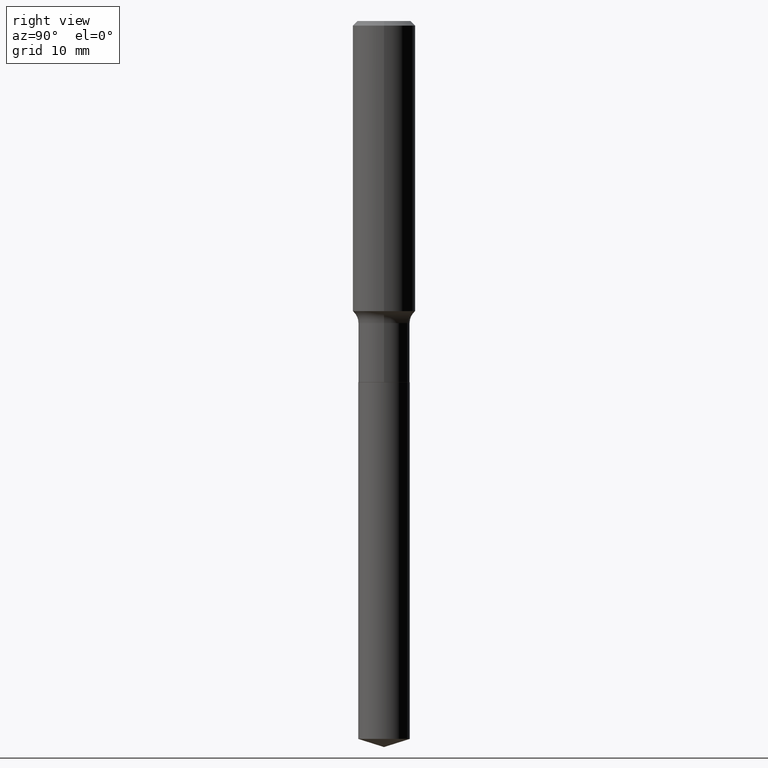
[diagram: clean part render]
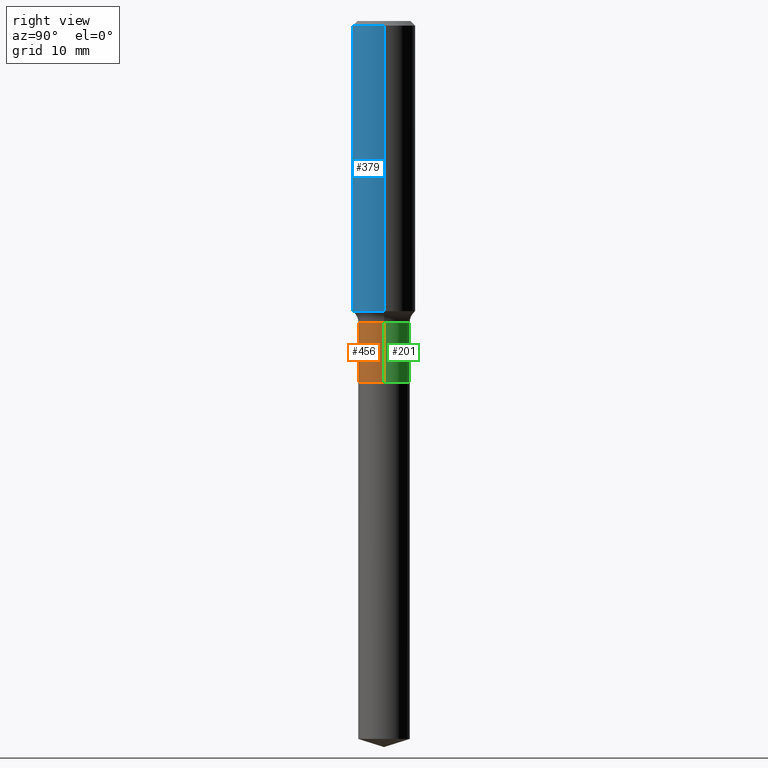
[diagram: same view with three faces highlighted in distinct colors, each labeled with its STEP entity id]
A machine part, right view with three faces highlighted in distinct colors.
Their STEP definitions:

[orange] entity #456 — the highlighted cylindrical surface (edge-blend (fillet) strip) has radius 3.2639 mm, axis along (-0, 0, 1).
#13 = ORIENTED_EDGE ( 'NONE', *, *, #368, .T. ) ;
#30 = LINE ( 'NONE', #339, #383 ) ;
#44 = FACE_OUTER_BOUND ( 'NONE', #319, .T. ) ;
#66 = CARTESIAN_POINT ( 'NONE',  ( -0.1285000000000000309, -4.868321959471694166E-15, -1.803400000000000114 ) ) ;
#76 = DIRECTION ( 'NONE',  ( 1.000000000000000000, -6.982962677686267499E-15, 0.000000000000000000 ) ) ;
#85 = VERTEX_POINT ( 'NONE', #447 ) ;
#106 = CIRCLE ( 'NONE', #154, 0.1284999999999999754 ) ;
#115 = CARTESIAN_POINT ( 'NONE',  ( 4.410158445074275915E-29, -6.296537446469729141E-15, -1.803400000000000114 ) ) ;
#119 = ORIENTED_EDGE ( 'NONE', *, *, #178, .F. ) ;
#123 = CARTESIAN_POINT ( 'NONE',  ( 0.000000000000000000, 0.000000000000000000, 0.000000000000000000 ) ) ;
#127 = CIRCLE ( 'NONE', #408, 0.1285000000000000309 ) ;
#154 = AXIS2_PLACEMENT_3D ( 'NONE', #218, #295, #222 ) ;
#178 = EDGE_CURVE ( 'NONE', #473, #85, #106, .T. ) ;
#195 = VERTEX_POINT ( 'NONE', #372 ) ;
#209 = EDGE_CURVE ( 'NONE', #216, #473, #30, .T. ) ;
#215 = EDGE_CURVE ( 'NONE', #195, #85, #261, .T. ) ;
#216 = VERTEX_POINT ( 'NONE', #66 ) ;
#218 = CARTESIAN_POINT ( 'NONE',  ( 3.688500600369042709E-29, -5.266201303377117503E-15, -1.508300000000000418 ) ) ;
#222 = DIRECTION ( 'NONE',  ( 1.000000000000000000, -6.982962677686270655E-15, 0.000000000000000000 ) ) ;
#238 = DIRECTION ( 'NONE',  ( 1.000000000000000000, -6.982962677686265922E-15, 4.876176775795936353E-29 ) ) ;
#257 = CARTESIAN_POINT ( 'NONE',  ( 0.1285000000000000031, -8.973107040826851776E-16, 6.265887156897778363E-30 ) ) ;
#261 = LINE ( 'NONE', #257, #299 ) ;
#278 = DIRECTION ( 'NONE',  ( -2.445468806185136597E-29, 3.491481338843145583E-15, 1.000000000000000000 ) ) ;
#295 = DIRECTION ( 'NONE',  ( -2.445468806185136597E-29, 3.491481338843145583E-15, 1.000000000000000000 ) ) ;
#299 = VECTOR ( 'NONE', #414, 39.37007874015748143 ) ;
#301 = ORIENTED_EDGE ( 'NONE', *, *, #209, .F. ) ;
#309 = AXIS2_PLACEMENT_3D ( 'NONE', #123, #278, #238 ) ;
#319 = EDGE_LOOP ( 'NONE', ( #301, #13, #449, #119 ) ) ;
#339 = CARTESIAN_POINT ( 'NONE',  ( -0.1285000000000000031, 9.130474154517287609E-16, -6.320831590977554358E-30 ) ) ;
#351 = DIRECTION ( 'NONE',  ( -2.445468806185136597E-29, 3.491481338843145583E-15, 1.000000000000000000 ) ) ;
#368 = EDGE_CURVE ( 'NONE', #216, #195, #127, .T. ) ;
#372 = CARTESIAN_POINT ( 'NONE',  ( 0.1285000000000000309, -7.193848150552414318E-15, -1.803400000000000114 ) ) ;
#383 = VECTOR ( 'NONE', #492, 39.37007874015748143 ) ;
#408 = AXIS2_PLACEMENT_3D ( 'NONE', #115, #351, #76 ) ;
#414 = DIRECTION ( 'NONE',  ( -2.445468806185136877E-29, 3.491481338843145188E-15, 1.000000000000000000 ) ) ;
#436 = CARTESIAN_POINT ( 'NONE',  ( -0.1284999999999999754, -4.868321959471694166E-15, -1.508300000000000418 ) ) ;
#447 = CARTESIAN_POINT ( 'NONE',  ( 0.1284999999999999754, -6.163512007459803469E-15, -1.508300000000000418 ) ) ;
#449 = ORIENTED_EDGE ( 'NONE', *, *, #215, .T. ) ;
#456 = ADVANCED_FACE ( 'NONE', ( #44 ), #472, .T. ) ;
#472 = CYLINDRICAL_SURFACE ( 'NONE', #309, 0.1285000000000000031 ) ;
#473 = VERTEX_POINT ( 'NONE', #436 ) ;
#492 = DIRECTION ( 'NONE',  ( -2.445468806185136877E-29, 3.491481338843145188E-15, 1.000000000000000000 ) ) ;

[blue] entity #379 — the highlighted cylindrical surface (edge-blend (fillet) strip) has radius 3.9688 mm, axis along (-0, 0, 1).
#9 = CARTESIAN_POINT ( 'NONE',  ( -0.1562500000000000000, -1.459648067697439575E-15, -0.02343750000000014225 ) ) ;
#20 = AXIS2_PLACEMENT_3D ( 'NONE', #356, #432, #389 ) ;
#21 = CARTESIAN_POINT ( 'NONE',  ( 3.542611680774473923E-29, -5.057910590766056588E-15, -1.448643168873967380 ) ) ;
#41 = DIRECTION ( 'NONE',  ( 1.000000000000000000, -6.982962677686266711E-15, 4.876176775795935232E-29 ) ) ;
#72 = VERTEX_POINT ( 'NONE', #365 ) ;
#74 = EDGE_CURVE ( 'NONE', #438, #72, #308, .T. ) ;
#84 = CARTESIAN_POINT ( 'NONE',  ( 0.1562500000000000833, -1.091087918388479765E-15, 7.619026212181153180E-30 ) ) ;
#87 = ORIENTED_EDGE ( 'NONE', *, *, #404, .F. ) ;
#95 = AXIS2_PLACEMENT_3D ( 'NONE', #21, #325, #244 ) ;
#103 = LINE ( 'NONE', #451, #212 ) ;
#122 = VERTEX_POINT ( 'NONE', #168 ) ;
#149 = CYLINDRICAL_SURFACE ( 'NONE', #224, 0.1562500000000000833 ) ;
#163 = CARTESIAN_POINT ( 'NONE',  ( -0.1562500000000001665, -3.947687566140898470E-15, -1.448643168873967380 ) ) ;
#164 = ORIENTED_EDGE ( 'NONE', *, *, #74, .T. ) ;
#166 = ORIENTED_EDGE ( 'NONE', *, *, #267, .F. ) ;
#168 = CARTESIAN_POINT ( 'NONE',  ( 0.1562500000000000000, -1.172919512267615999E-15, -0.02343750000000014225 ) ) ;
#175 = ORIENTED_EDGE ( 'NONE', *, *, #303, .T. ) ;
#196 = LINE ( 'NONE', #84, #342 ) ;
#211 = EDGE_LOOP ( 'NONE', ( #166, #164, #175, #87 ) ) ;
#212 = VECTOR ( 'NONE', #412, 39.37007874015748143 ) ;
#224 = AXIS2_PLACEMENT_3D ( 'NONE', #385, #234, #41 ) ;
#227 = FACE_OUTER_BOUND ( 'NONE', #211, .T. ) ;
#234 = DIRECTION ( 'NONE',  ( -2.445468806185136597E-29, 3.491481338843145583E-15, 1.000000000000000000 ) ) ;
#244 = DIRECTION ( 'NONE',  ( 1.000000000000000000, -6.982962677686269077E-15, 0.000000000000000000 ) ) ;
#267 = EDGE_CURVE ( 'NONE', #438, #388, #103, .T. ) ;
#268 = CIRCLE ( 'NONE', #20, 0.1562500000000000000 ) ;
#303 = EDGE_CURVE ( 'NONE', #72, #122, #196, .T. ) ;
#308 = CIRCLE ( 'NONE', #95, 0.1562500000000001388 ) ;
#325 = DIRECTION ( 'NONE',  ( -2.445468806185136597E-29, 3.491481338843145583E-15, 1.000000000000000000 ) ) ;
#342 = VECTOR ( 'NONE', #427, 39.37007874015748143 ) ;
#356 = CARTESIAN_POINT ( 'NONE',  ( 5.731567514496448931E-31, -8.183159387913672688E-17, -0.02343750000000014225 ) ) ;
#365 = CARTESIAN_POINT ( 'NONE',  ( 0.1562500000000001665, -6.148998509154537339E-15, -1.448643168873967380 ) ) ;
#379 = ADVANCED_FACE ( 'NONE', ( #227 ), #149, .T. ) ;
#385 = CARTESIAN_POINT ( 'NONE',  ( 0.000000000000000000, 0.000000000000000000, 0.000000000000000000 ) ) ;
#388 = VERTEX_POINT ( 'NONE', #9 ) ;
#389 = DIRECTION ( 'NONE',  ( 1.000000000000000000, -6.982962677686266711E-15, 0.000000000000000000 ) ) ;
#404 = EDGE_CURVE ( 'NONE', #388, #122, #268, .T. ) ;
#412 = DIRECTION ( 'NONE',  ( -2.445468806185136877E-29, 3.491481338843145188E-15, 1.000000000000000000 ) ) ;
#427 = DIRECTION ( 'NONE',  ( -2.445468806185136877E-29, 3.491481338843145188E-15, 1.000000000000000000 ) ) ;
#432 = DIRECTION ( 'NONE',  ( -2.445468806185136597E-29, 3.491481338843145583E-15, 1.000000000000000000 ) ) ;
#438 = VERTEX_POINT ( 'NONE', #163 ) ;
#451 = CARTESIAN_POINT ( 'NONE',  ( -0.1562500000000000833, 1.110223024625157132E-15, -7.685836078523293962E-30 ) ) ;

[green] entity #201 — the highlighted cylindrical surface (edge-blend (fillet) strip) has radius 3.2639 mm, axis along (-0, 0, 1).
#28 = DIRECTION ( 'NONE',  ( -2.445468806185136597E-29, 3.491481338843145583E-15, 1.000000000000000000 ) ) ;
#30 = LINE ( 'NONE', #339, #383 ) ;
#62 = AXIS2_PLACEMENT_3D ( 'NONE', #73, #69, #185 ) ;
#66 = CARTESIAN_POINT ( 'NONE',  ( -0.1285000000000000309, -4.868321959471694166E-15, -1.803400000000000114 ) ) ;
#69 = DIRECTION ( 'NONE',  ( -2.445468806185136597E-29, 3.491481338843145583E-15, 1.000000000000000000 ) ) ;
#73 = CARTESIAN_POINT ( 'NONE',  ( 0.000000000000000000, 0.000000000000000000, 0.000000000000000000 ) ) ;
#85 = VERTEX_POINT ( 'NONE', #447 ) ;
#109 = ORIENTED_EDGE ( 'NONE', *, *, #229, .F. ) ;
#118 = AXIS2_PLACEMENT_3D ( 'NONE', #488, #461, #293 ) ;
#126 = EDGE_LOOP ( 'NONE', ( #465, #390, #109, #399 ) ) ;
#139 = CIRCLE ( 'NONE', #118, 0.1285000000000000309 ) ;
#143 = AXIS2_PLACEMENT_3D ( 'NONE', #490, #28, #298 ) ;
#185 = DIRECTION ( 'NONE',  ( 1.000000000000000000, -6.982962677686265922E-15, 4.876176775795936353E-29 ) ) ;
#195 = VERTEX_POINT ( 'NONE', #372 ) ;
#201 = ADVANCED_FACE ( 'NONE', ( #223 ), #454, .T. ) ;
#209 = EDGE_CURVE ( 'NONE', #216, #473, #30, .T. ) ;
#215 = EDGE_CURVE ( 'NONE', #195, #85, #261, .T. ) ;
#216 = VERTEX_POINT ( 'NONE', #66 ) ;
#223 = FACE_OUTER_BOUND ( 'NONE', #126, .T. ) ;
#229 = EDGE_CURVE ( 'NONE', #85, #473, #457, .T. ) ;
#249 = EDGE_CURVE ( 'NONE', #195, #216, #139, .T. ) ;
#257 = CARTESIAN_POINT ( 'NONE',  ( 0.1285000000000000031, -8.973107040826851776E-16, 6.265887156897778363E-30 ) ) ;
#261 = LINE ( 'NONE', #257, #299 ) ;
#293 = DIRECTION ( 'NONE',  ( 1.000000000000000000, -6.982962677686267499E-15, 0.000000000000000000 ) ) ;
#298 = DIRECTION ( 'NONE',  ( 1.000000000000000000, -6.982962677686270655E-15, 0.000000000000000000 ) ) ;
#299 = VECTOR ( 'NONE', #414, 39.37007874015748143 ) ;
#339 = CARTESIAN_POINT ( 'NONE',  ( -0.1285000000000000031, 9.130474154517287609E-16, -6.320831590977554358E-30 ) ) ;
#372 = CARTESIAN_POINT ( 'NONE',  ( 0.1285000000000000309, -7.193848150552414318E-15, -1.803400000000000114 ) ) ;
#383 = VECTOR ( 'NONE', #492, 39.37007874015748143 ) ;
#390 = ORIENTED_EDGE ( 'NONE', *, *, #209, .T. ) ;
#399 = ORIENTED_EDGE ( 'NONE', *, *, #215, .F. ) ;
#414 = DIRECTION ( 'NONE',  ( -2.445468806185136877E-29, 3.491481338843145188E-15, 1.000000000000000000 ) ) ;
#436 = CARTESIAN_POINT ( 'NONE',  ( -0.1284999999999999754, -4.868321959471694166E-15, -1.508300000000000418 ) ) ;
#447 = CARTESIAN_POINT ( 'NONE',  ( 0.1284999999999999754, -6.163512007459803469E-15, -1.508300000000000418 ) ) ;
#454 = CYLINDRICAL_SURFACE ( 'NONE', #62, 0.1285000000000000031 ) ;
#457 = CIRCLE ( 'NONE', #143, 0.1284999999999999754 ) ;
#461 = DIRECTION ( 'NONE',  ( -2.445468806185136597E-29, 3.491481338843145583E-15, 1.000000000000000000 ) ) ;
#465 = ORIENTED_EDGE ( 'NONE', *, *, #249, .T. ) ;
#473 = VERTEX_POINT ( 'NONE', #436 ) ;
#488 = CARTESIAN_POINT ( 'NONE',  ( 4.410158445074275915E-29, -6.296537446469729141E-15, -1.803400000000000114 ) ) ;
#490 = CARTESIAN_POINT ( 'NONE',  ( 3.688500600369042709E-29, -5.266201303377117503E-15, -1.508300000000000418 ) ) ;
#492 = DIRECTION ( 'NONE',  ( -2.445468806185136877E-29, 3.491481338843145188E-15, 1.000000000000000000 ) ) ;